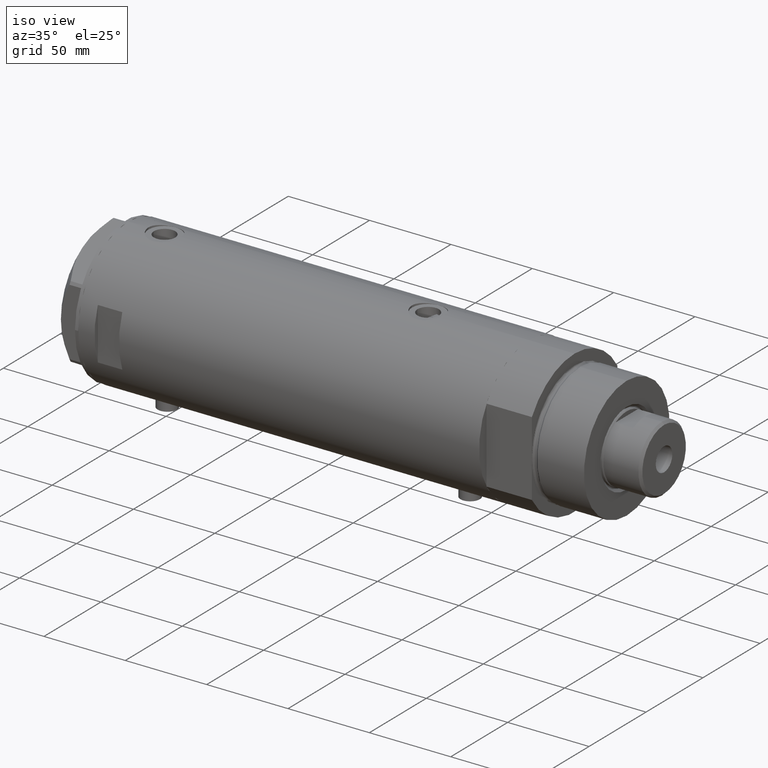
[diagram: clean part render]
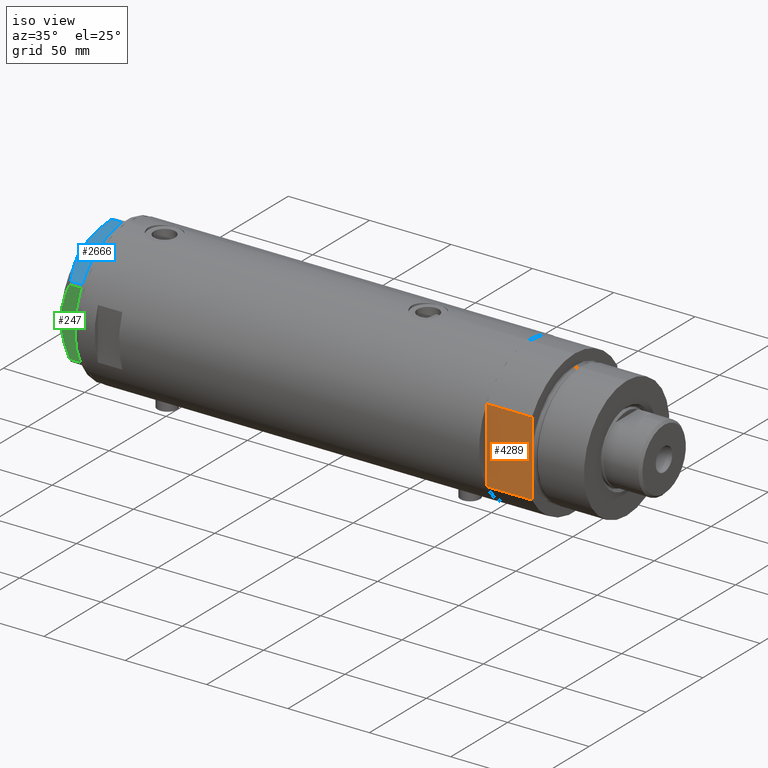
[diagram: same view with three faces highlighted in distinct colors, each labeled with its STEP entity id]
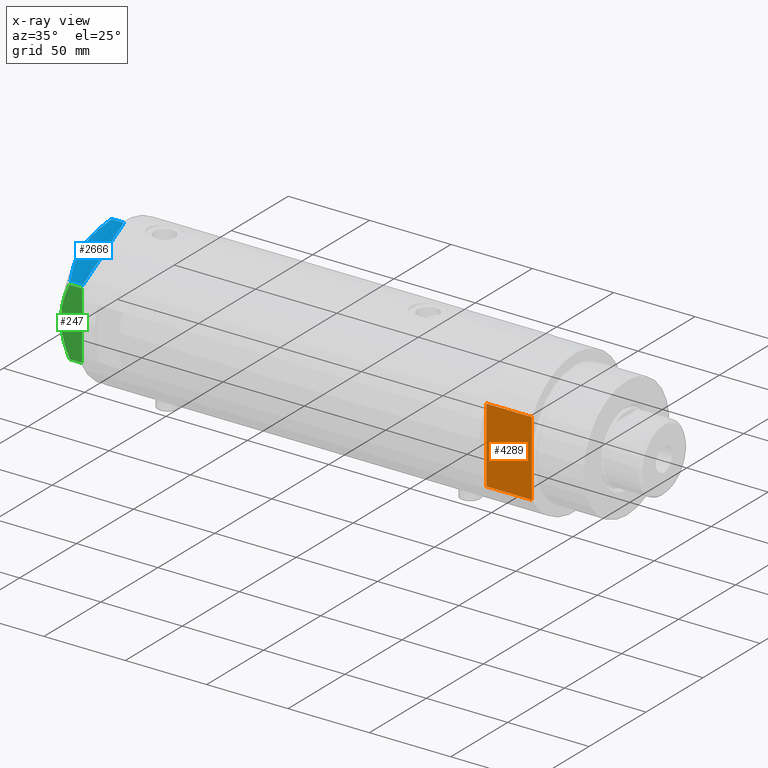
[diagram: x-ray of the same camera — body ghosted, the three highlighted faces saturated]
A machine part, iso view with three faces highlighted in distinct colors.
The next image is the same camera in x-ray (body ghosted, the three faces saturated) — at least one of them is partly hidden behind the body in this view.
Their STEP definitions:

[orange] entity #4289 — the highlighted planar face has unit normal (-0, 1, 0).
#15 = VERTEX_POINT ( 'NONE', #3257 ) ;
#74 = DIRECTION ( 'NONE',  ( -1.000000000000000000, -0.000000000000000000, -0.000000000000000000 ) ) ;
#89 = CARTESIAN_POINT ( 'NONE',  ( 13.91941090707505957, -37.50000000000000000, 0.000000000000000000 ) ) ;
#256 = CARTESIAN_POINT ( 'NONE',  ( 23.01629857296780557, -37.50000000000000000, 27.89999999999999858 ) ) ;
#278 = VECTOR ( 'NONE', #2701, 1000.000000000000000 ) ;
#286 = LINE ( 'NONE', #3549, #3430 ) ;
#490 = DIRECTION ( 'NONE',  ( -1.000000000000000000, -0.000000000000000000, -0.000000000000000000 ) ) ;
#551 = DIRECTION ( 'NONE',  ( -0.000000000000000000, -0.000000000000000000, 1.000000000000000000 ) ) ;
#698 = CARTESIAN_POINT ( 'NONE',  ( -23.01629857296780557, -37.50000000000000000, 0.000000000000000000 ) ) ;
#814 = LINE ( 'NONE', #3961, #2253 ) ;
#941 = VECTOR ( 'NONE', #490, 1000.000000000000000 ) ;
#1120 = CARTESIAN_POINT ( 'NONE',  ( 23.01629857296780557, -37.50000000000000000, 0.000000000000000000 ) ) ;
#1195 = ORIENTED_EDGE ( 'NONE', *, *, #1428, .F. ) ;
#1222 = VERTEX_POINT ( 'NONE', #3041 ) ;
#1237 = ORIENTED_EDGE ( 'NONE', *, *, #4066, .T. ) ;
#1271 = CARTESIAN_POINT ( 'NONE',  ( -13.91941090707505957, -37.50000000000000000, 0.000000000000000000 ) ) ;
#1428 = EDGE_CURVE ( 'NONE', #15, #2319, #2885, .T. ) ;
#1496 = VERTEX_POINT ( 'NONE', #2728 ) ;
#1534 = AXIS2_PLACEMENT_3D ( 'NONE', #698, #1759, #4275 ) ;
#1591 = CARTESIAN_POINT ( 'NONE',  ( -23.01629857296780557, -37.50000000000000000, 27.89999999999999858 ) ) ;
#1653 = CARTESIAN_POINT ( 'NONE',  ( -23.01629857296780557, -37.50000000000000000, 27.89999999999999858 ) ) ;
#1749 = DIRECTION ( 'NONE',  ( -1.000000000000000000, -0.000000000000000000, -0.000000000000000000 ) ) ;
#1759 = DIRECTION ( 'NONE',  ( -0.000000000000000000, 1.000000000000000000, 0.000000000000000000 ) ) ;
#1927 = VERTEX_POINT ( 'NONE', #1271 ) ;
#1928 = DIRECTION ( 'NONE',  ( -1.000000000000000000, -0.000000000000000000, -0.000000000000000000 ) ) ;
#1976 = EDGE_CURVE ( 'NONE', #1496, #2175, #2379, .T. ) ;
#2175 = VERTEX_POINT ( 'NONE', #3806 ) ;
#2253 = VECTOR ( 'NONE', #1928, 1000.000000000000000 ) ;
#2261 = VECTOR ( 'NONE', #3502, 1000.000000000000000 ) ;
#2319 = VERTEX_POINT ( 'NONE', #89 ) ;
#2379 = LINE ( 'NONE', #3019, #3356 ) ;
#2504 = FACE_OUTER_BOUND ( 'NONE', #3094, .T. ) ;
#2701 = DIRECTION ( 'NONE',  ( -1.000000000000000000, -0.000000000000000000, -0.000000000000000000 ) ) ;
#2728 = CARTESIAN_POINT ( 'NONE',  ( -23.01629857296780557, -37.50000000000000000, 0.000000000000000000 ) ) ;
#2885 = LINE ( 'NONE', #3236, #4443 ) ;
#2975 = ORIENTED_EDGE ( 'NONE', *, *, #3809, .T. ) ;
#3019 = CARTESIAN_POINT ( 'NONE',  ( -23.01629857296780557, -37.50000000000000000, 0.000000000000000000 ) ) ;
#3022 = EDGE_CURVE ( 'NONE', #2319, #1927, #286, .T. ) ;
#3041 = CARTESIAN_POINT ( 'NONE',  ( 0.000000000000000000, -37.50000000000000000, 27.89999999999999858 ) ) ;
#3094 = EDGE_LOOP ( 'NONE', ( #1237, #4488, #3840, #3523, #4130, #1195, #2975 ) ) ;
#3103 = LINE ( 'NONE', #1653, #278 ) ;
#3236 = CARTESIAN_POINT ( 'NONE',  ( -23.01629857296780557, -37.50000000000000000, 0.000000000000000000 ) ) ;
#3257 = CARTESIAN_POINT ( 'NONE',  ( 23.01629857296780557, -37.50000000000000000, 0.000000000000000000 ) ) ;
#3259 = EDGE_CURVE ( 'NONE', #1927, #1496, #814, .T. ) ;
#3295 = EDGE_CURVE ( 'NONE', #1222, #2175, #3635, .T. ) ;
#3356 = VECTOR ( 'NONE', #551, 1000.000000000000000 ) ;
#3430 = VECTOR ( 'NONE', #1749, 1000.000000000000000 ) ;
#3502 = DIRECTION ( 'NONE',  ( -0.000000000000000000, -0.000000000000000000, 1.000000000000000000 ) ) ;
#3523 = ORIENTED_EDGE ( 'NONE', *, *, #3259, .F. ) ;
#3549 = CARTESIAN_POINT ( 'NONE',  ( -23.01629857296780557, -37.50000000000000000, 0.000000000000000000 ) ) ;
#3557 = PLANE ( 'NONE',  #1534 ) ;
#3572 = LINE ( 'NONE', #1120, #2261 ) ;
#3635 = LINE ( 'NONE', #1591, #941 ) ;
#3806 = CARTESIAN_POINT ( 'NONE',  ( -23.01629857296780557, -37.50000000000000000, 27.89999999999999858 ) ) ;
#3809 = EDGE_CURVE ( 'NONE', #15, #4010, #3572, .T. ) ;
#3840 = ORIENTED_EDGE ( 'NONE', *, *, #1976, .F. ) ;
#3961 = CARTESIAN_POINT ( 'NONE',  ( -23.01629857296780557, -37.50000000000000000, 0.000000000000000000 ) ) ;
#4010 = VERTEX_POINT ( 'NONE', #256 ) ;
#4066 = EDGE_CURVE ( 'NONE', #4010, #1222, #3103, .T. ) ;
#4130 = ORIENTED_EDGE ( 'NONE', *, *, #3022, .F. ) ;
#4275 = DIRECTION ( 'NONE',  ( 0.000000000000000000, -0.000000000000000000, 1.000000000000000000 ) ) ;
#4289 = ADVANCED_FACE ( 'NONE', ( #2504 ), #3557, .F. ) ;
#4443 = VECTOR ( 'NONE', #74, 1000.000000000000000 ) ;
#4488 = ORIENTED_EDGE ( 'NONE', *, *, #3295, .T. ) ;

[blue] entity #2666 — the highlighted planar face has unit normal (-0, 0.5, -0.866).
#16 = CARTESIAN_POINT ( 'NONE',  ( -8.949419886525276979, -38.42299534324038746, 11.30742055474529195 ) ) ;
#44 = DIRECTION ( 'NONE',  ( -0.000000000000000000, 0.000000000000000000, -1.000000000000000000 ) ) ;
#49 = EDGE_LOOP ( 'NONE', ( #1732, #2638, #4283, #1223, #3344 ) ) ;
#54 = CARTESIAN_POINT ( 'NONE',  ( -22.79667224021351757, -30.42828046930181074, 12.73960743196720280 ) ) ;
#58 = VERTEX_POINT ( 'NONE', #1617 ) ;
#223 = FACE_OUTER_BOUND ( 'NONE', #49, .T. ) ;
#272 = CARTESIAN_POINT ( 'NONE',  ( -0.9699484522385920515, -43.02994532381674020, 0.000000000000000000 ) ) ;
#300 = DIRECTION ( 'NONE',  ( 0.000000000000000000, 0.000000000000000000, 1.000000000000000000 ) ) ;
#308 = CARTESIAN_POINT ( 'NONE',  ( -25.11263918036253884, -29.09115633297249204, 12.35956205105863326 ) ) ;
#347 = LINE ( 'NONE', #2132, #2389 ) ;
#356 = CARTESIAN_POINT ( 'NONE',  ( -26.62598697109946855, -28.21742457861298803, 11.98878493998158312 ) ) ;
#370 = CARTESIAN_POINT ( 'NONE',  ( -17.32290914057169928, -33.58855906836025440, 12.99999999999999822 ) ) ;
#392 = CARTESIAN_POINT ( 'NONE',  ( -2.376799045726867732, -42.21769975495670479, 8.489459328479822986 ) ) ;
#515 = LINE ( 'NONE', #1912, #1720 ) ;
#651 = CARTESIAN_POINT ( 'NONE',  ( -33.96695484073207183, -23.97911480296823683, 9.269459228581803600 ) ) ;
#922 = CARTESIAN_POINT ( 'NONE',  ( -37.74999999999999289, -21.79497266190838189, 13.00000000000000000 ) ) ;
#1091 = CARTESIAN_POINT ( 'NONE',  ( -6.717640657183465258, -39.71151368207270593, 10.48240969891360663 ) ) ;
#1223 = ORIENTED_EDGE ( 'NONE', *, *, #1491, .T. ) ;
#1491 = EDGE_CURVE ( 'NONE', #1940, #58, #515, .T. ) ;
#1617 = CARTESIAN_POINT ( 'NONE',  ( -0.9699484522420150912, -43.02994532381475068, 7.709124142618884790 ) ) ;
#1626 = CARTESIAN_POINT ( 'NONE',  ( -36.78005154776155905, -22.35497266190830246, 7.709124142616896158 ) ) ;
#1633 = EDGE_CURVE ( 'NONE', #4341, #58, #4273, .T. ) ;
#1708 = CARTESIAN_POINT ( 'NONE',  ( -19.65653997226998584, -32.24123667949004357, 13.00000000000000178 ) ) ;
#1720 = VECTOR ( 'NONE', #300, 1000.000000000000000 ) ;
#1724 = CARTESIAN_POINT ( 'NONE',  ( -36.78005154776141694, -22.35497266190838772, 0.000000000000000000 ) ) ;
#1732 = ORIENTED_EDGE ( 'NONE', *, *, #2049, .F. ) ;
#1769 = CARTESIAN_POINT ( 'NONE',  ( -12.72654504259227259, -36.24227111762220943, 12.37795492145981235 ) ) ;
#1788 = CARTESIAN_POINT ( 'NONE',  ( -0.9699484522420150912, -43.02994532381475068, 7.709124142618884790 ) ) ;
#1912 = CARTESIAN_POINT ( 'NONE',  ( -0.9699484522385850571, -43.02994532381674020, 13.00000000000000000 ) ) ;
#1940 = VERTEX_POINT ( 'NONE', #272 ) ;
#1962 = DIRECTION ( 'NONE',  ( -0.8660254037844387076, 0.4999999999999998890, 0.000000000000000000 ) ) ;
#2039 = CARTESIAN_POINT ( 'NONE',  ( -36.78005154776155905, -22.35497266190830246, 7.709124142616896158 ) ) ;
#2044 = CARTESIAN_POINT ( 'NONE',  ( -18.87499999999999645, -32.69245899286255508, 13.00000000000000000 ) ) ;
#2049 = EDGE_CURVE ( 'NONE', #4509, #4341, #4376, .T. ) ;
#2132 = CARTESIAN_POINT ( 'NONE',  ( -37.74999999999999289, -21.79497266190838189, 0.000000000000000000 ) ) ;
#2144 = CARTESIAN_POINT ( 'NONE',  ( -31.09047021924039811, -25.63985397350626272, 10.58681170757598977 ) ) ;
#2316 = DIRECTION ( 'NONE',  ( 0.4999999999999998890, 0.8660254037844387076, -0.000000000000000000 ) ) ;
#2389 = VECTOR ( 'NONE', #4244, 1000.000000000000227 ) ;
#2440 = LINE ( 'NONE', #2514, #2546 ) ;
#2470 = EDGE_CURVE ( 'NONE', #2521, #1940, #347, .T. ) ;
#2491 = CARTESIAN_POINT ( 'NONE',  ( -5.984301592053449248, -40.13490718873278951, 10.17879673963541087 ) ) ;
#2514 = CARTESIAN_POINT ( 'NONE',  ( -36.78005154776141694, -22.35497266190838772, 13.00000000000000000 ) ) ;
#2519 = EDGE_CURVE ( 'NONE', #4509, #2521, #2440, .T. ) ;
#2521 = VERTEX_POINT ( 'NONE', #1724 ) ;
#2546 = VECTOR ( 'NONE', #44, 1000.000000000000000 ) ;
#2638 = ORIENTED_EDGE ( 'NONE', *, *, #2519, .T. ) ;
#2666 = ADVANCED_FACE ( 'NONE', ( #223 ), #4411, .F. ) ;
#3178 = CARTESIAN_POINT ( 'NONE',  ( -11.20965750620535673, -37.11804654508558343, 12.01242981158399914 ) ) ;
#3189 = CARTESIAN_POINT ( 'NONE',  ( -20.44120046918716582, -31.78821273037243245, 12.96759879420491579 ) ) ;
#3190 = CARTESIAN_POINT ( 'NONE',  ( -18.87499999999999645, -32.69245899286255508, 13.00000000000000000 ) ) ;
#3344 = ORIENTED_EDGE ( 'NONE', *, *, #1633, .F. ) ;
#3428 = AXIS2_PLACEMENT_3D ( 'NONE', #922, #2316, #1962 ) ;
#3524 = CARTESIAN_POINT ( 'NONE',  ( -18.87499999999999645, -32.69245899286255508, 13.00000000000000000 ) ) ;
#3546 = CARTESIAN_POINT ( 'NONE',  ( -8.199247025946510448, -38.85610784623428060, 11.04644118613120085 ) ) ;
#3887 = CARTESIAN_POINT ( 'NONE',  ( -3.804046002727119014, -41.39367834013252434, 9.210778219601836625 ) ) ;
#3898 = CARTESIAN_POINT ( 'NONE',  ( -22.01686507582220997, -30.87850234557913609, 12.83692902789789869 ) ) ;
#3909 = CARTESIAN_POINT ( 'NONE',  ( -15.78316139395997908, -34.47753284435064813, 12.87183830165164800 ) ) ;
#4244 = DIRECTION ( 'NONE',  ( 0.8660254037844385966, -0.4999999999999998890, 0.000000000000000000 ) ) ;
#4273 = B_SPLINE_CURVE_WITH_KNOTS ( 'NONE', 3,
 ( #3524, #370, #3909, #1769, #3178, #16, #3546, #1091, #2491, #3887, #392, #1788 ),
 .UNSPECIFIED., .F., .F.,
 ( 4, 2, 2, 2, 2, 4 ),
 ( 0.02259271946349905580, 0.02789559809390664002, 0.03319847672431422425, 0.03584991603951802330, 0.03850135535472180848, 0.04380423398512939964 ),
 .UNSPECIFIED. ) ;
#4283 = ORIENTED_EDGE ( 'NONE', *, *, #2470, .T. ) ;
#4341 = VERTEX_POINT ( 'NONE', #3190 ) ;
#4376 = B_SPLINE_CURVE_WITH_KNOTS ( 'NONE', 3,
 ( #1626, #651, #2144, #356, #308, #54, #3898, #3189, #1708, #2044 ),
 .UNSPECIFIED., .F., .F.,
 ( 4, 2, 2, 2, 4 ),
 ( 0.001231023567492484571, 0.01191187151549577550, 0.01725229548949741565, 0.01992250747649823572, 0.02259271946349905580 ),
 .UNSPECIFIED. ) ;
#4411 = PLANE ( 'NONE',  #3428 ) ;
#4509 = VERTEX_POINT ( 'NONE', #2039 ) ;

[green] entity #247 — the highlighted planar face has unit normal (-0, 1, 0).
#79 = CARTESIAN_POINT ( 'NONE',  ( -37.75000000000000000, 17.42329546264825524, 9.202188366597436442 ) ) ;
#137 = CARTESIAN_POINT ( 'NONE',  ( -37.75000000000000000, -1.201851678989727067E-14, 13.00000000000000000 ) ) ;
#177 = VERTEX_POINT ( 'NONE', #1539 ) ;
#203 = ORIENTED_EDGE ( 'NONE', *, *, #4007, .T. ) ;
#225 = ORIENTED_EDGE ( 'NONE', *, *, #3305, .T. ) ;
#247 = ADVANCED_FACE ( 'NONE', ( #3834 ), #4191, .F. ) ;
#457 = CARTESIAN_POINT ( 'NONE',  ( -37.74999999999999289, -7.161343005612803125, 12.36677985830371895 ) ) ;
#543 = VERTEX_POINT ( 'NONE', #1809 ) ;
#569 = EDGE_CURVE ( 'NONE', #543, #4039, #3949, .T. ) ;
#721 = LINE ( 'NONE', #1776, #997 ) ;
#760 = ORIENTED_EDGE ( 'NONE', *, *, #569, .F. ) ;
#812 = VERTEX_POINT ( 'NONE', #2799 ) ;
#932 = CARTESIAN_POINT ( 'NONE',  ( -37.74999999999999289, -20.67497266190837379, 13.00000000000000000 ) ) ;
#997 = VECTOR ( 'NONE', #1823, 1000.000000000000000 ) ;
#1058 = CARTESIAN_POINT ( 'NONE',  ( -37.75000000000000000, 7.143641079404827288, 12.47474846747316946 ) ) ;
#1198 = CARTESIAN_POINT ( 'NONE',  ( -37.75000000000000000, -17.40390235304479205, 9.187919079516763787 ) ) ;
#1205 = LINE ( 'NONE', #3003, #3500 ) ;
#1356 = LINE ( 'NONE', #932, #3368 ) ;
#1405 = CARTESIAN_POINT ( 'NONE',  ( -37.75000000000000000, 14.89874562435961103, 10.17375260246623903 ) ) ;
#1424 = EDGE_CURVE ( 'NONE', #1840, #177, #721, .T. ) ;
#1526 = CARTESIAN_POINT ( 'NONE',  ( -37.75000000000000000, -8.905753572404320195, 11.99914237172014886 ) ) ;
#1539 = CARTESIAN_POINT ( 'NONE',  ( -37.74999999999999289, -20.67497266190837379, 0.000000000000000000 ) ) ;
#1550 = CARTESIAN_POINT ( 'NONE',  ( -37.75000000000000000, -0.9015134592203577490, 13.00000000000000178 ) ) ;
#1776 = CARTESIAN_POINT ( 'NONE',  ( -37.75000000000000711, 21.79497266190837124, 0.000000000000000000 ) ) ;
#1809 = CARTESIAN_POINT ( 'NONE',  ( -37.75000000000000711, 20.67497266190838090, 7.709124142616995634 ) ) ;
#1823 = DIRECTION ( 'NONE',  ( 3.183713056926429451E-16, -1.000000000000000000, 0.000000000000000000 ) ) ;
#1840 = VERTEX_POINT ( 'NONE', #3296 ) ;
#1905 = CARTESIAN_POINT ( 'NONE',  ( -37.75000000000000000, -19.86857906850810096, 8.096480699986589258 ) ) ;
#2031 = DIRECTION ( 'NONE',  ( 0.000000000000000000, 0.000000000000000000, 1.000000000000000000 ) ) ;
#2055 = DIRECTION ( 'NONE',  ( 1.000000000000000000, 3.183713056926429451E-16, -0.000000000000000000 ) ) ;
#2223 = CARTESIAN_POINT ( 'NONE',  ( -37.75000000000000000, -4.503994958793054337, 12.74237531377022670 ) ) ;
#2292 = DIRECTION ( 'NONE',  ( -3.183713056926429451E-16, 1.000000000000000000, 0.000000000000000000 ) ) ;
#2455 = CARTESIAN_POINT ( 'NONE',  ( -37.75000000000000711, 3.615248338761639868, 13.00000000000000355 ) ) ;
#2557 = CARTESIAN_POINT ( 'NONE',  ( -37.74999999999999289, 11.46926194450821690, 11.30493988086503521 ) ) ;
#2799 = CARTESIAN_POINT ( 'NONE',  ( -37.74999999999999289, -20.67497266190838090, 7.709124142616975206 ) ) ;
#2804 = CARTESIAN_POINT ( 'NONE',  ( -37.74999999999999289, 14.04433099034388199, 10.48027127384610857 ) ) ;
#2949 = CARTESIAN_POINT ( 'NONE',  ( -37.74999999999998579, -3.611424898442238351, 12.83826937481876662 ) ) ;
#2973 = CARTESIAN_POINT ( 'NONE',  ( -37.74999999999999289, -20.67497266190838090, 7.709124142616975206 ) ) ;
#3003 = CARTESIAN_POINT ( 'NONE',  ( -37.75000000000000711, 20.67497266190837024, 13.00000000000000000 ) ) ;
#3219 = CARTESIAN_POINT ( 'NONE',  ( -37.75000000000000711, 20.67497266190838090, 7.709124142616995634 ) ) ;
#3281 = EDGE_LOOP ( 'NONE', ( #760, #225, #4332, #203, #3800 ) ) ;
#3296 = CARTESIAN_POINT ( 'NONE',  ( -37.75000000000000711, 20.67497266190837024, 0.000000000000000000 ) ) ;
#3305 = EDGE_CURVE ( 'NONE', #543, #1840, #1205, .T. ) ;
#3368 = VECTOR ( 'NONE', #2031, 1000.000000000000000 ) ;
#3472 = CARTESIAN_POINT ( 'NONE',  ( -37.75000000000000711, 21.79497266190837124, 13.00000000000000000 ) ) ;
#3500 = VECTOR ( 'NONE', #4400, 1000.000000000000000 ) ;
#3533 = B_SPLINE_CURVE_WITH_KNOTS ( 'NONE', 3,
 ( #137, #1550, #4029, #2949, #2223, #457, #1526, #4346, #4325, #4001, #1198, #3659, #1905, #2973 ),
 .UNSPECIFIED., .F., .F.,
 ( 4, 2, 2, 2, 2, 2, 4 ),
 ( 0.07749717587205659508, 0.08017617902235898986, 0.08285518217266138463, 0.08821318847326617418, 0.09357119477387096373, 0.09625019792417334463, 0.09892920107447573941 ),
 .UNSPECIFIED. ) ;
#3659 = CARTESIAN_POINT ( 'NONE',  ( -37.75000000000000000, -19.05362936076134517, 8.470554105526115762 ) ) ;
#3752 = CARTESIAN_POINT ( 'NONE',  ( -37.75000000000000000, -1.201851678989727067E-14, 13.00000000000000000 ) ) ;
#3800 = ORIENTED_EDGE ( 'NONE', *, *, #4239, .F. ) ;
#3834 = FACE_OUTER_BOUND ( 'NONE', #3281, .T. ) ;
#3855 = CARTESIAN_POINT ( 'NONE',  ( -37.75000000000000000, -1.201851678989727067E-14, 13.00000000000000000 ) ) ;
#3949 = B_SPLINE_CURVE_WITH_KNOTS ( 'NONE', 3,
 ( #3219, #4542, #79, #1405, #2804, #4207, #2557, #1058, #2455, #3855 ),
 .UNSPECIFIED., .F., .F.,
 ( 4, 2, 2, 2, 4 ),
 ( 0.05601050456479945983, 0.06138217239161374017, 0.06406800630502088034, 0.06675384021842802051, 0.07749717587205659508 ),
 .UNSPECIFIED. ) ;
#4001 = CARTESIAN_POINT ( 'NONE',  ( -37.74999999999999289, -16.56731140591524110, 9.531835068628826235 ) ) ;
#4007 = EDGE_CURVE ( 'NONE', #177, #812, #1356, .T. ) ;
#4029 = CARTESIAN_POINT ( 'NONE',  ( -37.75000000000000000, -1.811728074765795338, 12.96720910498919999 ) ) ;
#4039 = VERTEX_POINT ( 'NONE', #3752 ) ;
#4191 = PLANE ( 'NONE',  #4436 ) ;
#4207 = CARTESIAN_POINT ( 'NONE',  ( -37.74999999999999289, 12.33018559404073855, 11.04557586999680474 ) ) ;
#4239 = EDGE_CURVE ( 'NONE', #4039, #812, #3533, .T. ) ;
#4325 = CARTESIAN_POINT ( 'NONE',  ( -37.74999999999999289, -14.04742653794399132, 10.50092616350622698 ) ) ;
#4332 = ORIENTED_EDGE ( 'NONE', *, *, #1424, .T. ) ;
#4346 = CARTESIAN_POINT ( 'NONE',  ( -37.74999999999999289, -12.34877760086739862, 11.06613894200179260 ) ) ;
#4400 = DIRECTION ( 'NONE',  ( 0.000000000000000000, 0.000000000000000000, -1.000000000000000000 ) ) ;
#4436 = AXIS2_PLACEMENT_3D ( 'NONE', #3472, #2055, #2292 ) ;
#4542 = CARTESIAN_POINT ( 'NONE',  ( -37.75000000000001421, 19.06473524669327446, 8.482612457517163307 ) ) ;